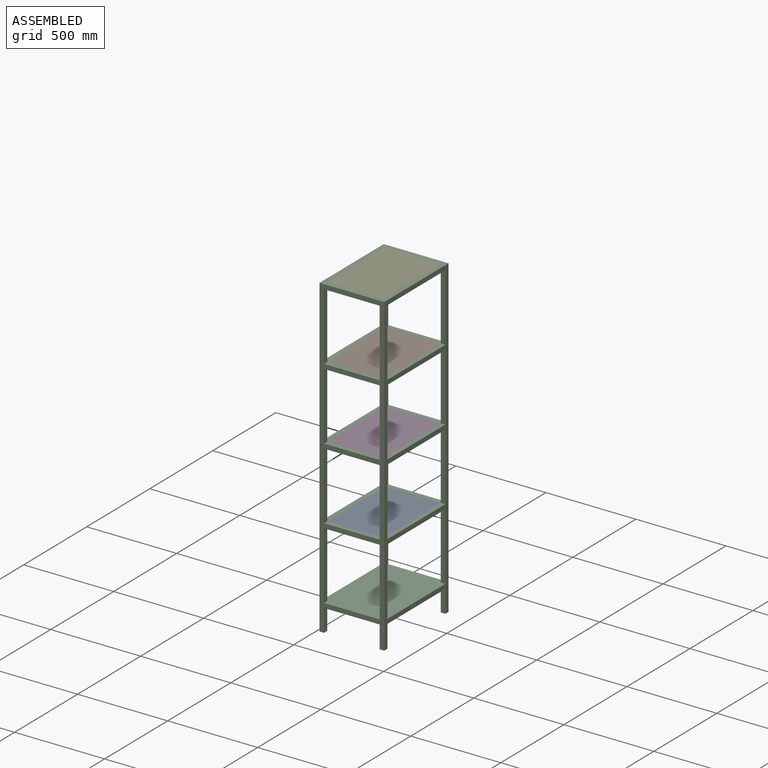
[diagram: assembled view]
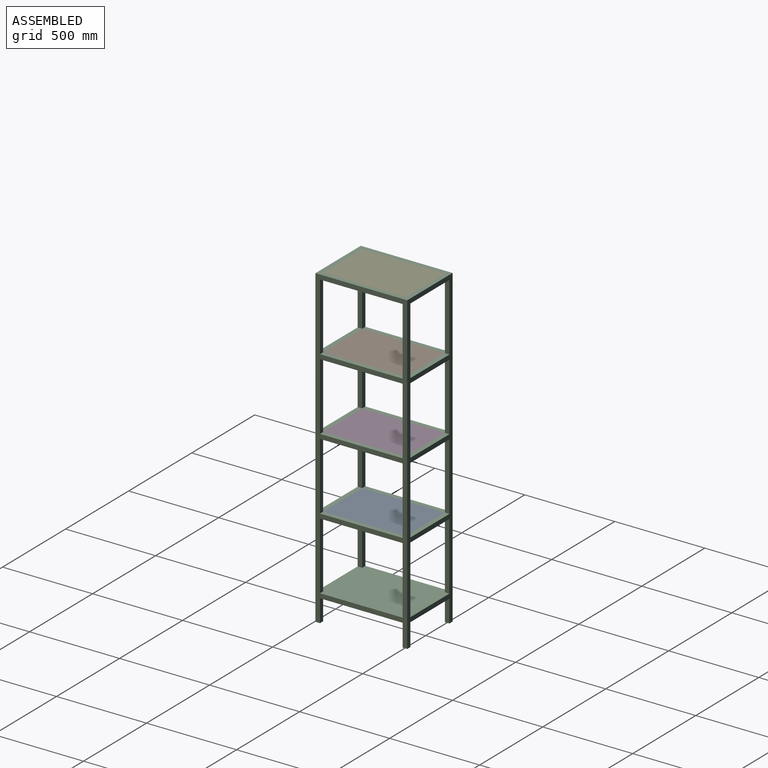
[diagram: assembled view, second angle]
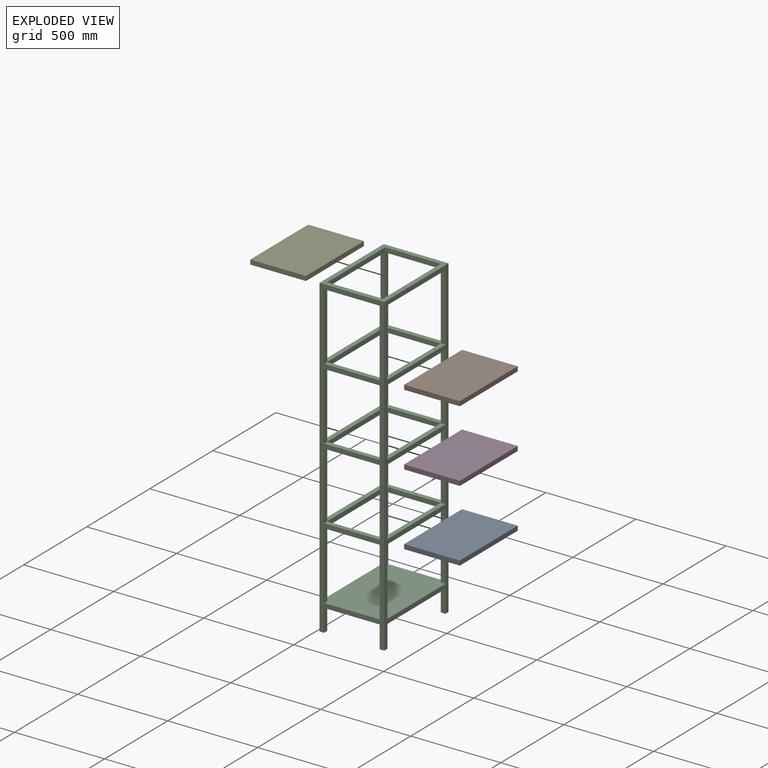
[diagram: exploded view]
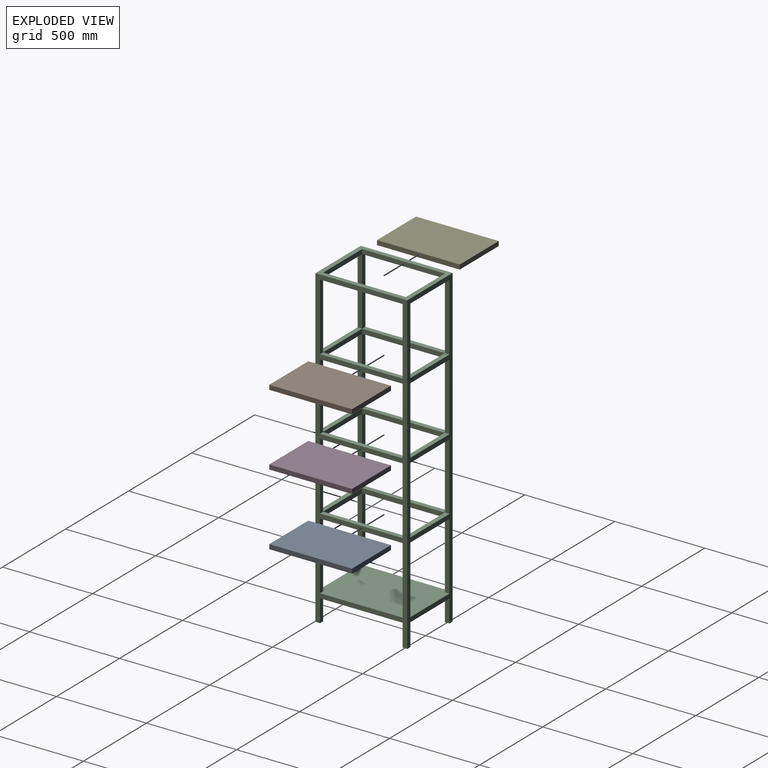
[diagram: exploded view, second angle]
ASSEMBLY  parts=5 mates=12
PART A: 6 faces, bbox 309.2x459.2x25.4 mm
  f0: plane 309.19x25.4mm, normal (0,1,0), area 7853.5mm2, adj f1,f3,f4,f5
  f1: plane 459.21x25.4mm, normal (-1,0,0), area 11663.8mm2, adj f0,f2,f4,f5
  f2: plane 309.19x25.4mm, normal (0,-1,0), area 7853.5mm2, adj f1,f3,f4,f5
  f3: plane 459.21x25.4mm, normal (1,0,0), area 11663.8mm2, adj f0,f2,f4,f5
  f4: plane 459.21x309.19mm, normal (0,0,1), area 141984mm2, adj f0,f1,f2,f3
  f5: plane 459.21x309.19mm, normal (0,0,-1), area 141984mm2, adj f0,f1,f2,f3
PART B: same geometry as A
PART C: 95 faces, bbox 360x510x1750 mm
  f0: plane 374.6x25.4mm, normal (-1,0,0), area 9514.8mm2, adj f8,f42,f91,f94
  f1: plane 374.6x25.4mm, normal (1,0,0), area 9514.8mm2, adj f7,f42,f91,f94
  f2: plane 374.6x25.4mm, normal (1,0,0), area 9514.8mm2, adj f16,f53,f88,f94
  f3: plane 124.6x25.4mm, normal (1,0,0), area 3164.8mm2, adj f6,f53,f57,f93
  f4: plane 374.6x25.4mm, normal (-1,0,0), area 9514.8mm2, adj f9,f53,f88,f94
  f5: plane 124.6x25.4mm, normal (-1,0,0), area 3164.8mm2, adj f42,f49,f51,f93
  f6: plane 124.6x25.4mm, normal (0,-1,0), area 3164.8mm2, adj f3,f41,f57,f93
  f7: plane 374.6x25.4mm, normal (0,1,0), area 9514.8mm2, adj f1,f41,f85,f94
  f8: plane 374.6x25.4mm, normal (0,1,0), area 9514.8mm2, adj f0,f48,f83,f94
  f9: plane 374.6x25.4mm, normal (0,-1,0), area 9514.8mm2, adj f4,f48,f83,f94
  f10: plane 374.6x25.4mm, normal (-1,0,0), area 9514.8mm2, adj f18,f42,f81,f92
  f11: plane 459.2x25.4mm, normal (-1,0,0), area 11663.7mm2, adj f83,f84,f87,f90
  f12: plane 374.6x25.4mm, normal (1,0,0), area 9514.8mm2, adj f17,f42,f81,f92
  f13: plane 459.2x25.4mm, normal (1,0,0), area 11663.7mm2, adj f85,f86,f87,f90
  f14: plane 374.6x25.4mm, normal (1,0,0), area 9514.8mm2, adj f26,f53,f78,f89
  f15: plane 374.6x25.4mm, normal (-1,0,0), area 9514.8mm2, adj f19,f53,f78,f89
  f16: plane 374.6x25.4mm, normal (0,-1,0), area 9514.8mm2, adj f2,f41,f85,f94
  f17: plane 374.6x25.4mm, normal (0,1,0), area 9514.8mm2, adj f12,f41,f75,f86
  f18: plane 374.6x25.4mm, normal (0,1,0), area 9514.8mm2, adj f10,f48,f73,f84
  f19: plane 374.6x25.4mm, normal (0,-1,0), area 9514.8mm2, adj f15,f48,f73,f84
  f20: plane 374.6x25.4mm, normal (-1,0,0), area 9514.8mm2, adj f28,f42,f71,f82
  f21: plane 459.2x25.4mm, normal (-1,0,0), area 11663.7mm2, adj f73,f74,f77,f80
  f22: plane 374.6x25.4mm, normal (1,0,0), area 9514.8mm2, adj f27,f42,f71,f82
  f23: plane 459.2x25.4mm, normal (1,0,0), area 11663.7mm2, adj f75,f76,f77,f80
  f24: plane 374.6x25.4mm, normal (1,0,0), area 9514.8mm2, adj f37,f53,f68,f79
  f25: plane 374.6x25.4mm, normal (-1,0,0), area 9514.8mm2, adj f29,f53,f68,f79
  f26: plane 374.6x25.4mm, normal (0,-1,0), area 9514.8mm2, adj f14,f41,f75,f86
  f27: plane 374.6x25.4mm, normal (0,1,0), area 9514.8mm2, adj f22,f41,f65,f76
  f28: plane 374.6x25.4mm, normal (0,1,0), area 9514.8mm2, adj f20,f48,f63,f74
  f29: plane 374.6x25.4mm, normal (0,-1,0), area 9514.8mm2, adj f25,f48,f63,f74
  f30: plane 374.6x25.4mm, normal (-1,0,0), area 9514.8mm2, adj f38,f42,f62,f72
  f31: plane 459.2x25.4mm, normal (-1,0,0), area 11663.7mm2, adj f63,f64,f67,f70
  f32: plane 374.6x25.4mm, normal (1,0,0), area 9514.8mm2, adj f36,f42,f62,f72
  f33: plane 459.2x25.4mm, normal (1,0,0), area 11663.7mm2, adj f65,f66,f67,f70
  f34: plane 374.6x25.4mm, normal (1,0,0), area 9514.8mm2, adj f53,f56,f59,f69
  f35: plane 374.6x25.4mm, normal (-1,0,0), area 9514.8mm2, adj f39,f53,f59,f69
  f36: plane 374.6x25.4mm, normal (0,1,0), area 9514.8mm2, adj f32,f41,f58,f66
  f37: plane 374.6x25.4mm, normal (0,-1,0), area 9514.8mm2, adj f24,f41,f65,f76
  f38: plane 374.6x25.4mm, normal (0,1,0), area 9514.8mm2, adj f30,f48,f60,f64
  f39: plane 374.6x25.4mm, normal (0,-1,0), area 9514.8mm2, adj f35,f48,f60,f64
  f40: plane 459.2x25.4mm, normal (1,0,0), area 11663.7mm2, adj f45,f52,f58,f61
  f41: plane 1750x510mm, normal (-1,0,0), area 147218.4mm2, adj f6,f7,f16,f17,f26,f27,f36,f37
  f42: plane 1750x360mm, normal (0,-1,0), area 128168.4mm2, adj f0,f1,f5,f10,f12,f20,f22,f30
  f43: plane 124.6x25.4mm, normal (1,0,0), area 3164.8mm2, adj f42,f44,f46,f93
  f44: plane 124.6x25.4mm, normal (0,1,0), area 3164.8mm2, adj f41,f43,f46,f93
  f45: plane 510x360mm, normal (0,0,1), area 41615.4mm2, adj f40,f41,f42,f47,f48,f52,f53,f61
  f46: plane 25.4x25.4mm, normal (0,0,-1), area 645.2mm2, adj f41,f42,f43,f44
  f47: plane 459.2x25.4mm, normal (-1,0,0), area 11663.7mm2, adj f45,f52,f60,f61
  f48: plane 1750x510mm, normal (1,0,0), area 147218.4mm2, adj f8,f9,f18,f19,f28,f29,f38,f39
  f49: plane 124.6x25.4mm, normal (0,1,0), area 3164.8mm2, adj f5,f48,f51,f93
  f50: plane 124.6x25.4mm, normal (-1,0,0), area 3164.8mm2, adj f53,f54,f55,f93
  f51: plane 25.4x25.4mm, normal (0,0,-1), area 645.2mm2, adj f5,f42,f48,f49
  f52: plane 309.2x25.4mm, normal (0,-1,0), area 7853.7mm2, adj f40,f45,f47,f59
  f53: plane 1750x360mm, normal (0,1,0), area 128168.4mm2, adj f2,f3,f4,f14,f15,f24,f25,f34
  f54: plane 124.6x25.4mm, normal (0,-1,0), area 3164.8mm2, adj f48,f50,f55,f93
  f55: plane 25.4x25.4mm, normal (0,0,-1), area 645.2mm2, adj f48,f50,f53,f54
  f56: plane 374.6x25.4mm, normal (0,-1,0), area 9514.8mm2, adj f34,f41,f58,f66
  f57: plane 25.4x25.4mm, normal (0,0,-1), area 645.2mm2, adj f3,f6,f41,f53
  f58: plane 459.2x25.4mm, normal (0,0,-1), area 11663.7mm2, adj f36,f40,f41,f56
  f59: plane 309.2x25.4mm, normal (0,0,-1), area 7853.7mm2, adj f34,f35,f52,f53
  f60: plane 459.2x25.4mm, normal (0,0,-1), area 11663.7mm2, adj f38,f39,f47,f48
  f61: plane 309.2x25.4mm, normal (0,1,0), area 7853.7mm2, adj f40,f45,f47,f62
  f62: plane 309.2x25.4mm, normal (0,0,-1), area 7853.7mm2, adj f30,f32,f42,f61
  f63: plane 459.2x25.4mm, normal (0,0,-1), area 11663.7mm2, adj f28,f29,f31,f48
  f64: plane 459.2x25.4mm, normal (0,0,1), area 11663.7mm2, adj f31,f38,f39,f48
  f65: plane 459.2x25.4mm, normal (0,0,-1), area 11663.7mm2, adj f27,f33,f37,f41
  f66: plane 459.2x25.4mm, normal (0,0,1), area 11663.7mm2, adj f33,f36,f41,f56
  f67: plane 309.2x25.4mm, normal (0,-1,0), area 7853.7mm2, adj f31,f33,f68,f69
  f68: plane 309.2x25.4mm, normal (0,0,-1), area 7853.7mm2, adj f24,f25,f53,f67
  f69: plane 309.2x25.4mm, normal (0,0,1), area 7853.7mm2, adj f34,f35,f53,f67
  f70: plane 309.2x25.4mm, normal (0,1,0), area 7853.7mm2, adj f31,f33,f71,f72
  f71: plane 309.2x25.4mm, normal (0,0,-1), area 7853.7mm2, adj f20,f22,f42,f70
  f72: plane 309.2x25.4mm, normal (0,0,1), area 7853.7mm2, adj f30,f32,f42,f70
  f73: plane 459.2x25.4mm, normal (0,0,-1), area 11663.7mm2, adj f18,f19,f21,f48
  f74: plane 459.2x25.4mm, normal (0,0,1), area 11663.7mm2, adj f21,f28,f29,f48
  f75: plane 459.2x25.4mm, normal (0,0,-1), area 11663.7mm2, adj f17,f23,f26,f41
  f76: plane 459.2x25.4mm, normal (0,0,1), area 11663.7mm2, adj f23,f27,f37,f41
  f77: plane 309.2x25.4mm, normal (0,-1,0), area 7853.7mm2, adj f21,f23,f78,f79
  f78: plane 309.2x25.4mm, normal (0,0,-1), area 7853.7mm2, adj f14,f15,f53,f77
  f79: plane 309.2x25.4mm, normal (0,0,1), area 7853.7mm2, adj f24,f25,f53,f77
  f80: plane 309.2x25.4mm, normal (0,1,0), area 7853.7mm2, adj f21,f23,f81,f82
  f81: plane 309.2x25.4mm, normal (0,0,-1), area 7853.7mm2, adj f10,f12,f42,f80
  f82: plane 309.2x25.4mm, normal (0,0,1), area 7853.7mm2, adj f20,f22,f42,f80
  f83: plane 459.2x25.4mm, normal (0,0,-1), area 11663.7mm2, adj f8,f9,f11,f48
  f84: plane 459.2x25.4mm, normal (0,0,1), area 11663.7mm2, adj f11,f18,f19,f48
  f85: plane 459.2x25.4mm, normal (0,0,-1), area 11663.7mm2, adj f7,f13,f16,f41
  f86: plane 459.2x25.4mm, normal (0,0,1), area 11663.7mm2, adj f13,f17,f26,f41
  f87: plane 309.2x25.4mm, normal (0,-1,0), area 7853.7mm2, adj f11,f13,f88,f89
  f88: plane 309.2x25.4mm, normal (0,0,-1), area 7853.7mm2, adj f2,f4,f53,f87
  f89: plane 309.2x25.4mm, normal (0,0,1), area 7853.7mm2, adj f14,f15,f53,f87
  f90: plane 309.2x25.4mm, normal (0,1,0), area 7853.7mm2, adj f11,f13,f91,f92
  f91: plane 309.2x25.4mm, normal (0,0,-1), area 7853.7mm2, adj f0,f1,f42,f90
  f92: plane 309.2x25.4mm, normal (0,0,1), area 7853.7mm2, adj f10,f12,f42,f90
  f93: plane 510x360mm, normal (0,0,-1), area 181019.4mm2, adj f3,f5,f6,f41,f42,f43,f44,f48
  f94: plane 510x360mm, normal (0,0,1), area 181019.4mm2, adj f0,f1,f2,f4,f7,f8,f9,f16
PART D: same geometry as A
PART E: same geometry as A
PLACE A rot(axis=(0,0,-1),180deg) t=(180,-255,524.6)mm
PLACE B t=(180,-255,1324.6)mm
PLACE C t=(180,-255,0)mm
PLACE D t=(180,-255,924.6)mm
PLACE E t=(180,-255,1724.6)mm
MATE planar C.f40 <-> E.f1  axis (1,0,0) through (25.4,-255,1737.3)mm
MATE planar A.f1 <-> C.f11  axis (1,0,0) through (334.6,-255,537.3)mm
MATE planar D.f3 <-> C.f21  axis (1,0,0) through (334.6,-255,937.3)mm
MATE planar E.f2 <-> C.f61  axis (0,-1,0) through (180,-484.6,1737.3)mm
MATE planar B.f3 <-> C.f31  axis (1,0,0) through (334.6,-255,1324.6)mm
MATE planar C.f80 <-> D.f2  axis (0,1,0) through (180,-484.6,937.3)mm
MATE planar A.f4 <-> C.f92  axis (0,0,1) through (25.41,-255,550)mm
MATE planar D.f4 <-> C.f76  axis (0,0,1) through (180,-255,950)mm
MATE planar A.f0 <-> C.f90  axis (0,-1,0) through (180,-484.6,537.3)mm
MATE planar C.f45 <-> E.f4  axis (0,0,1) through (180,-255,1750)mm
MATE planar B.f2 <-> C.f28  axis (0,-1,0) through (180,-484.6,1337.3)mm
MATE planar B.f4 <-> C.f66  axis (0,0,1) through (180,-255,1350)mm
